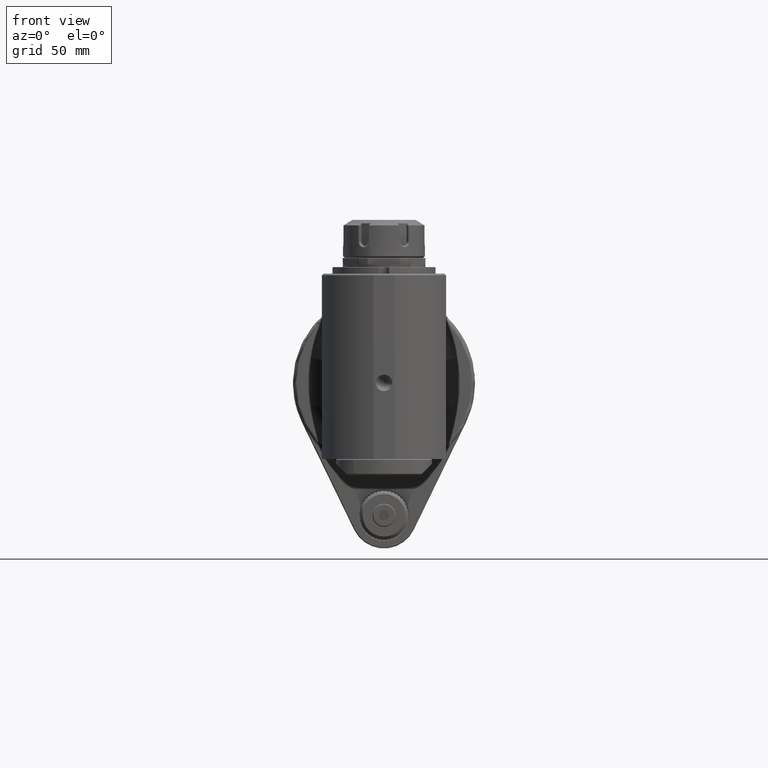
[diagram: clean part render]
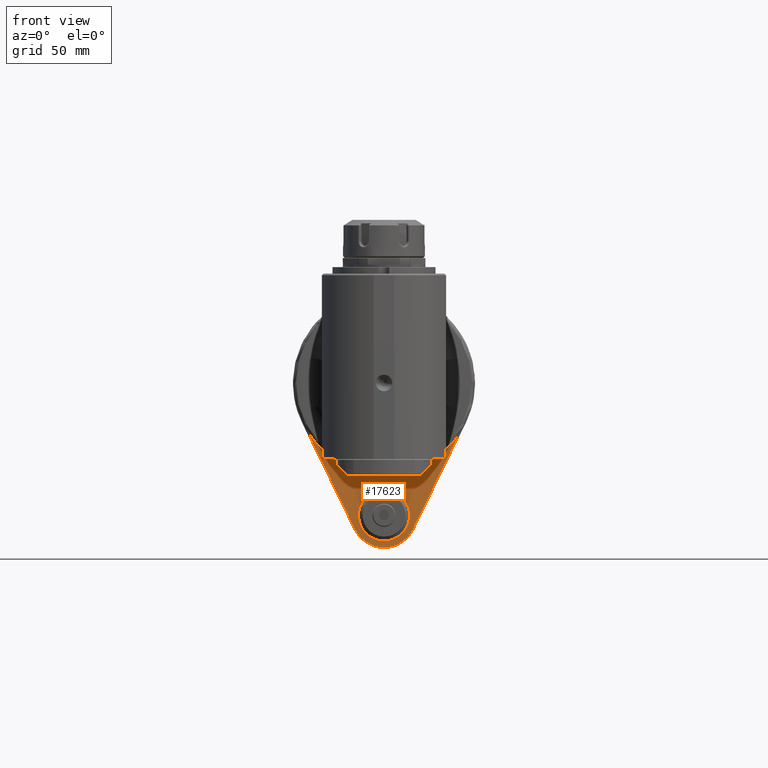
[diagram: same view with one face highlighted and labeled with its STEP entity id]
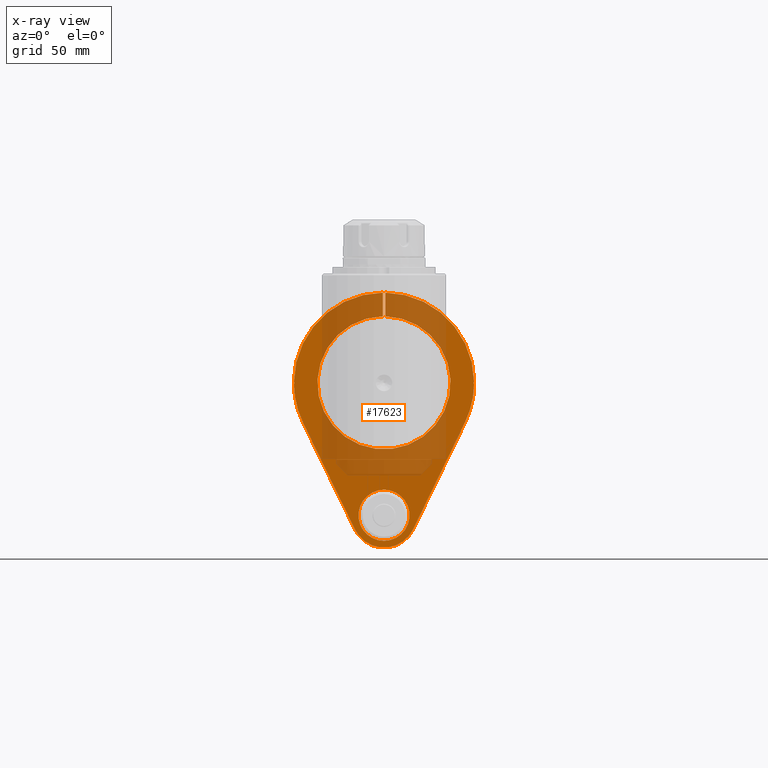
[diagram: x-ray of the same camera — body ghosted, the highlighted face saturated]
A machine part, front view. The second image highlights one B-rep face of the part: STEP entity #17623.
The next image is the same camera in x-ray: the body ghosted, the highlighted face saturated — about 46% of this face is hidden behind the body in this view.
In plain terms, the highlighted planar face has unit normal (0, 1, 0).
Its self-contained STEP definition (entity closure, byte-faithful):
#139=FACE_BOUND('',#2947,.T.);
#999=CIRCLE('',#18864,15.44986895804);
#1000=CIRCLE('',#18866,54.4997927598);
#1001=CIRCLE('',#18867,19.4996675071803);
#1002=CIRCLE('',#18868,54.499795523);
#1003=CIRCLE('',#18869,54.499795523);
#1004=CIRCLE('',#18870,40.20002666123);
#1005=CIRCLE('',#18871,54.4997927598);
#1903=FACE_OUTER_BOUND('',#2946,.T.);
#2946=EDGE_LOOP('',(#11952,#11953,#11954,#11955,#11956,#11957,#11958,#11959,
#11960,#11961,#11962,#11963,#11964,#11965));
#2947=EDGE_LOOP('',(#11966));
#4250=LINE('',#26525,#5744);
#4251=LINE('',#26527,#5745);
#4252=LINE('',#26531,#5746);
#4253=LINE('',#26535,#5747);
#4254=LINE('',#26539,#5748);
#4255=LINE('',#26541,#5749);
#4256=LINE('',#26545,#5750);
#4257=LINE('',#26549,#5751);
#5744=VECTOR('',#21076,0.703602203132403);
#5745=VECTOR('',#21077,0.703602054453202);
#5746=VECTOR('',#21080,10.);
#5747=VECTOR('',#21083,10.);
#5748=VECTOR('',#21086,0.703606075688203);
#5749=VECTOR('',#21087,0.703605927015702);
#5750=VECTOR('',#21090,10.);
#5751=VECTOR('',#21093,10.);
#7379=VERTEX_POINT('',#26519);
#7380=VERTEX_POINT('',#26523);
#7381=VERTEX_POINT('',#26524);
#7382=VERTEX_POINT('',#26526);
#7383=VERTEX_POINT('',#26528);
#7384=VERTEX_POINT('',#26530);
#7385=VERTEX_POINT('',#26532);
#7386=VERTEX_POINT('',#26534);
#7387=VERTEX_POINT('',#26536);
#7388=VERTEX_POINT('',#26538);
#7389=VERTEX_POINT('',#26540);
#7390=VERTEX_POINT('',#26542);
#7391=VERTEX_POINT('',#26544);
#7392=VERTEX_POINT('',#26546);
#7393=VERTEX_POINT('',#26548);
#9180=EDGE_CURVE('',#7379,#7379,#999,.T.);
#9181=EDGE_CURVE('',#7380,#7381,#4250,.T.);
#9182=EDGE_CURVE('',#7382,#7380,#4251,.T.);
#9183=EDGE_CURVE('',#7383,#7382,#1000,.T.);
#9184=EDGE_CURVE('',#7384,#7383,#4252,.T.);
#9185=EDGE_CURVE('',#7385,#7384,#1001,.T.);
#9186=EDGE_CURVE('',#7386,#7385,#4253,.T.);
#9187=EDGE_CURVE('',#7387,#7386,#1002,.T.);
#9188=EDGE_CURVE('',#7388,#7387,#4254,.T.);
#9189=EDGE_CURVE('',#7389,#7388,#4255,.T.);
#9190=EDGE_CURVE('',#7390,#7389,#1003,.T.);
#9191=EDGE_CURVE('',#7391,#7390,#4256,.T.);
#9192=EDGE_CURVE('',#7392,#7391,#1004,.T.);
#9193=EDGE_CURVE('',#7392,#7393,#4257,.T.);
#9194=EDGE_CURVE('',#7381,#7393,#1005,.T.);
#11952=ORIENTED_EDGE('',*,*,#9181,.F.);
#11953=ORIENTED_EDGE('',*,*,#9182,.F.);
#11954=ORIENTED_EDGE('',*,*,#9183,.F.);
#11955=ORIENTED_EDGE('',*,*,#9184,.F.);
#11956=ORIENTED_EDGE('',*,*,#9185,.F.);
#11957=ORIENTED_EDGE('',*,*,#9186,.F.);
#11958=ORIENTED_EDGE('',*,*,#9187,.F.);
#11959=ORIENTED_EDGE('',*,*,#9188,.F.);
#11960=ORIENTED_EDGE('',*,*,#9189,.F.);
#11961=ORIENTED_EDGE('',*,*,#9190,.F.);
#11962=ORIENTED_EDGE('',*,*,#9191,.F.);
#11963=ORIENTED_EDGE('',*,*,#9192,.F.);
#11964=ORIENTED_EDGE('',*,*,#9193,.T.);
#11965=ORIENTED_EDGE('',*,*,#9194,.F.);
#11966=ORIENTED_EDGE('',*,*,#9180,.F.);
#17071=PLANE('',#18865);
#17623=ADVANCED_FACE('',(#1903,#139),#17071,.F.);
#18864=AXIS2_PLACEMENT_3D('',#26521,#21072,#21073);
#18865=AXIS2_PLACEMENT_3D('',#26522,#21074,#21075);
#18866=AXIS2_PLACEMENT_3D('',#26529,#21078,#21079);
#18867=AXIS2_PLACEMENT_3D('',#26533,#21081,#21082);
#18868=AXIS2_PLACEMENT_3D('',#26537,#21084,#21085);
#18869=AXIS2_PLACEMENT_3D('',#26543,#21088,#21089);
#18870=AXIS2_PLACEMENT_3D('',#26547,#21091,#21092);
#18871=AXIS2_PLACEMENT_3D('',#26550,#21094,#21095);
#21072=DIRECTION('center_axis',(0.,-1.,0.));
#21073=DIRECTION('ref_axis',(1.,0.,3.318653637239E-12));
#21074=DIRECTION('center_axis',(0.,1.,0.));
#21075=DIRECTION('ref_axis',(1.,0.,0.));
#21076=DIRECTION('',(-0.707106757281797,-5.92453713841198E-13,0.707106805091297));
#21077=DIRECTION('',(0.707106787258298,3.73649864390399E-13,0.707106775114797));
#21078=DIRECTION('center_axis',(0.,1.,0.));
#21079=DIRECTION('ref_axis',(-0.899218410313069,0.,-0.437500000633185));
#21080=DIRECTION('',(-0.43749999999998,0.,0.899218410621144));
#21081=DIRECTION('center_axis',(0.,1.,0.));
#21082=DIRECTION('ref_axis',(0.,0.,1.));
#21083=DIRECTION('',(-0.43749999999998,0.,-0.899218410621145));
#21084=DIRECTION('center_axis',(0.,1.,0.));
#21085=DIRECTION('ref_axis',(0.999958330496379,0.,-0.00912892495830481));
#21086=DIRECTION('',(0.707106757282997,1.47775993687699E-12,-0.707106805090097));
#21087=DIRECTION('',(-0.707106787258097,-1.74368977004299E-12,-0.707106775114998));
#21088=DIRECTION('center_axis',(0.,1.,0.));
#21089=DIRECTION('ref_axis',(0.0137615160260506,0.,0.999905305854842));
#21090=DIRECTION('',(0.,0.,1.));
#21091=DIRECTION('center_axis',(0.,-1.,0.));
#21092=DIRECTION('ref_axis',(0.0186555955516791,0.,-0.999825969233952));
#21093=DIRECTION('',(0.,0.,1.));
#21094=DIRECTION('center_axis',(0.,1.,0.));
#21095=DIRECTION('ref_axis',(-0.999958330950849,0.,0.00912887517670645));
#26519=CARTESIAN_POINT('',(1.27125230434371E-13,-3.35875424695153E-12,-95.4498689580393));
#26521=CARTESIAN_POINT('Origin',(1.252331671777E-13,-2.6645352591E-12,-80.));
#26522=CARTESIAN_POINT('Origin',(0.,0.,0.));
#26523=CARTESIAN_POINT('',(-54.,0.,7.781645698183E-13));
#26524=CARTESIAN_POINT('',(-54.4975218151451,2.197176564158E-9,0.497521872340595));
#26525=CARTESIAN_POINT('',(-54.,0.,7.781645698183E-13));
#26526=CARTESIAN_POINT('',(-54.4975218076405,1.60684976435394E-9,-0.497521796632271));
#26527=CARTESIAN_POINT('',(-54.49752178823,-2.629008122312E-13,-0.4975217796878));
#26528=CARTESIAN_POINT('',(-49.0073099395015,-1.69140055901862E-7,-23.8437045795099));
#26529=CARTESIAN_POINT('Origin',(8.073541935074E-13,-7.887024366937E-13,
-3.819167104711E-13));
#26530=CARTESIAN_POINT('',(-17.5349705606335,-1.325735416214E-5,-88.5304351708465));
#26531=CARTESIAN_POINT('',(-41.1392422859193,0.,-40.0156249999998));
#26532=CARTESIAN_POINT('',(17.5349548585284,1.29329409198544E-6,-88.5304722274907));
#26533=CARTESIAN_POINT('Origin',(3.28626115289E-14,0.,-80.));
#26534=CARTESIAN_POINT('',(49.0073114273334,1.5596413049935E-12,-23.8437053051403));
#26535=CARTESIAN_POINT('',(41.1392422859193,0.,-40.0156249999998));
#26536=CARTESIAN_POINT('',(54.4975245534615,2.19966346369156E-9,-0.497524610648377));
#26537=CARTESIAN_POINT('Origin',(-4.360955940728E-13,3.119282609987E-12,
5.062617992291E-14));
#26538=CARTESIAN_POINT('',(54.,0.,-2.384203945383E-13));
#26539=CARTESIAN_POINT('',(54.,0.,-2.384296463968E-13));
#26540=CARTESIAN_POINT('',(54.4975245459512,1.60999431072478E-9,0.497524534954195));
#26541=CARTESIAN_POINT('',(54.49752452655,1.226870457079E-12,0.4975245180036));
#26542=CARTESIAN_POINT('',(0.749999999980208,4.23958400000392E-10,54.4946347098472));
#26543=CARTESIAN_POINT('Origin',(-4.360955940728E-13,3.67350594388E-12,
5.062617992291E-14));
#26544=CARTESIAN_POINT('',(0.74999999949063,-2.96403456551106E-10,40.1930297890349));
#26545=CARTESIAN_POINT('',(0.75,0.,20.));
#26546=CARTESIAN_POINT('',(-0.750000000028707,4.49954696475779E-10,40.1930297872161));
#26547=CARTESIAN_POINT('Origin',(-2.415845201584E-13,-7.673861546209E-13,
2.497557726197E-12));
#26548=CARTESIAN_POINT('',(-0.749999999496658,2.18265455063544E-10,54.4946319459035));
#26549=CARTESIAN_POINT('',(-0.75,0.,31.847));
#26550=CARTESIAN_POINT('Origin',(8.073541935074E-13,-1.250555214938E-12,
-3.819167104711E-13));